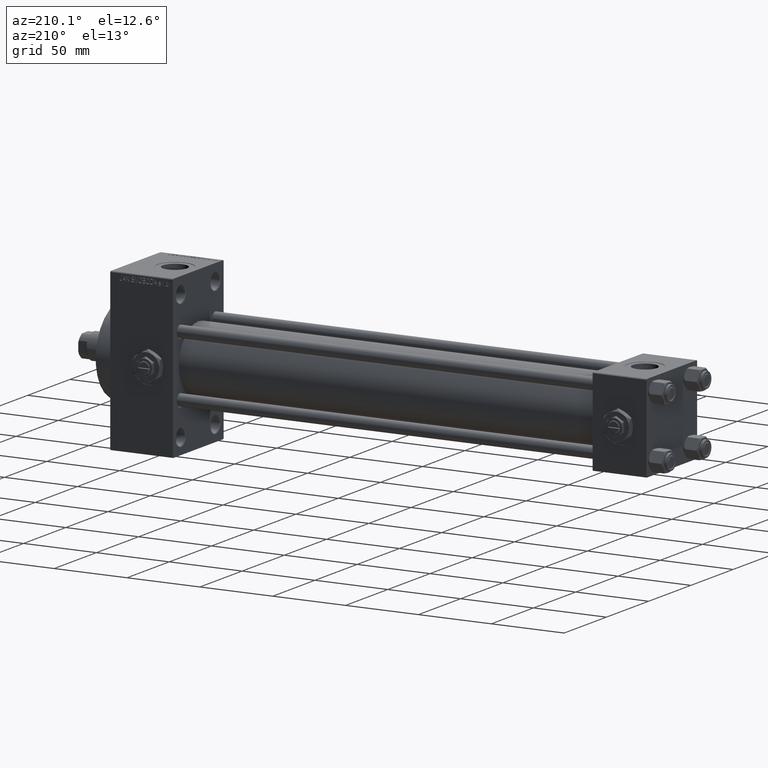
[diagram: clean part render]
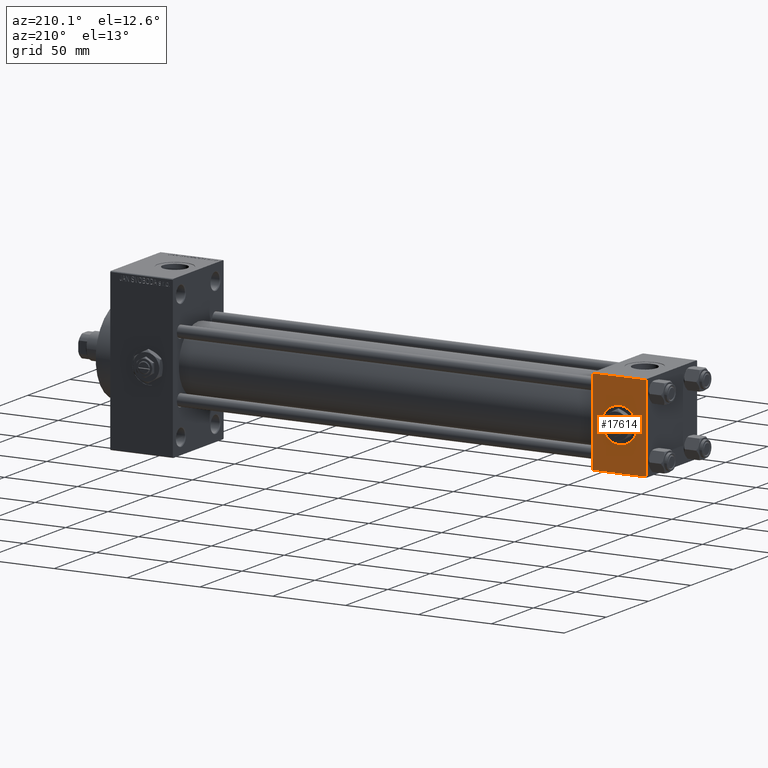
[diagram: same view with one face highlighted and labeled with its STEP entity id]
A machine part, auxiliary view. The second image highlights one B-rep face of the part: STEP entity #17614.
In plain terms, the highlighted planar face has unit normal (0, 1, 0).
Its self-contained STEP definition (entity closure, byte-faithful):
#361 = VERTEX_POINT ( 'NONE', #15430 ) ;
#693 = CIRCLE ( 'NONE', #38911, 12.00000000000000178 ) ;
#944 = FACE_BOUND ( 'NONE', #13775, .T. ) ;
#1208 = CARTESIAN_POINT ( 'NONE',  ( 0.000000000000000000, 29.99999999999999289, 29.50000000000000000 ) ) ;
#4821 = CARTESIAN_POINT ( 'NONE',  ( 37.00000000000000000, 29.99999999999999289, -29.50000000000000000 ) ) ;
#5019 = CARTESIAN_POINT ( 'NONE',  ( 18.50000000000000000, 29.99999999999999289, 0.000000000000000000 ) ) ;
#5184 = DIRECTION ( 'NONE',  ( -0.000000000000000000, 1.000000000000000000, 0.000000000000000000 ) ) ;
#5655 = ORIENTED_EDGE ( 'NONE', *, *, #47952, .F. ) ;
#6331 = DIRECTION ( 'NONE',  ( 0.000000000000000000, 0.000000000000000000, 1.000000000000000000 ) ) ;
#8530 = EDGE_CURVE ( 'NONE', #40030, #361, #47798, .T. ) ;
#10793 = DIRECTION ( 'NONE',  ( 0.000000000000000000, 0.000000000000000000, -1.000000000000000000 ) ) ;
#12418 = DIRECTION ( 'NONE',  ( 0.000000000000000000, -0.000000000000000000, 1.000000000000000000 ) ) ;
#13253 = DIRECTION ( 'NONE',  ( 0.000000000000000000, 1.000000000000000000, 0.000000000000000000 ) ) ;
#13775 = EDGE_LOOP ( 'NONE', ( #5655, #31707 ) ) ;
#15374 = EDGE_LOOP ( 'NONE', ( #27548, #21043, #46131, #39763 ) ) ;
#15430 = CARTESIAN_POINT ( 'NONE',  ( 0.000000000000000000, 29.99999999999999289, -29.50000000000000000 ) ) ;
#15469 = LINE ( 'NONE', #18976, #41784 ) ;
#16464 = CARTESIAN_POINT ( 'NONE',  ( 18.50000000000000000, 29.99999999999999289, -12.00000000000000178 ) ) ;
#17614 = ADVANCED_FACE ( 'NONE', ( #944, #39083 ), #46577, .T. ) ;
#18976 = CARTESIAN_POINT ( 'NONE',  ( 37.00000000000000000, 29.99999999999999289, 29.50000000000000000 ) ) ;
#21043 = ORIENTED_EDGE ( 'NONE', *, *, #8530, .T. ) ;
#21496 = LINE ( 'NONE', #29485, #23382 ) ;
#21929 = CIRCLE ( 'NONE', #32294, 12.00000000000000178 ) ;
#22454 = EDGE_CURVE ( 'NONE', #45657, #40030, #21496, .T. ) ;
#23140 = LINE ( 'NONE', #23386, #49126 ) ;
#23382 = VECTOR ( 'NONE', #10793, 1000.000000000000000 ) ;
#23386 = CARTESIAN_POINT ( 'NONE',  ( 0.000000000000000000, 29.99999999999999289, 30.00000000000000000 ) ) ;
#23876 = DIRECTION ( 'NONE',  ( 0.000000000000000000, 0.000000000000000000, -1.000000000000000000 ) ) ;
#24723 = EDGE_CURVE ( 'NONE', #42011, #45657, #15469, .T. ) ;
#25268 = CARTESIAN_POINT ( 'NONE',  ( 18.50000000000000000, 29.99999999999999289, 0.000000000000000000 ) ) ;
#27476 = EDGE_CURVE ( 'NONE', #31836, #31259, #21929, .T. ) ;
#27548 = ORIENTED_EDGE ( 'NONE', *, *, #22454, .T. ) ;
#29422 = VECTOR ( 'NONE', #47555, 1000.000000000000000 ) ;
#29485 = CARTESIAN_POINT ( 'NONE',  ( 37.00000000000000000, 29.99999999999999289, 30.00000000000000000 ) ) ;
#31259 = VERTEX_POINT ( 'NONE', #38058 ) ;
#31350 = CARTESIAN_POINT ( 'NONE',  ( 37.00000000000000000, 29.99999999999999289, 30.00000000000000000 ) ) ;
#31707 = ORIENTED_EDGE ( 'NONE', *, *, #27476, .F. ) ;
#31836 = VERTEX_POINT ( 'NONE', #16464 ) ;
#32294 = AXIS2_PLACEMENT_3D ( 'NONE', #25268, #41232, #6331 ) ;
#32891 = AXIS2_PLACEMENT_3D ( 'NONE', #31350, #5184, #12418 ) ;
#38058 = CARTESIAN_POINT ( 'NONE',  ( 18.50000000000000000, 29.99999999999999289, 12.00000000000000178 ) ) ;
#38911 = AXIS2_PLACEMENT_3D ( 'NONE', #5019, #13253, #47145 ) ;
#39083 = FACE_OUTER_BOUND ( 'NONE', #15374, .T. ) ;
#39763 = ORIENTED_EDGE ( 'NONE', *, *, #24723, .T. ) ;
#40030 = VERTEX_POINT ( 'NONE', #4821 ) ;
#40313 = CARTESIAN_POINT ( 'NONE',  ( 37.00000000000000000, 29.99999999999999289, -29.50000000000000000 ) ) ;
#41232 = DIRECTION ( 'NONE',  ( 0.000000000000000000, 1.000000000000000000, 0.000000000000000000 ) ) ;
#41784 = VECTOR ( 'NONE', #45904, 1000.000000000000000 ) ;
#42011 = VERTEX_POINT ( 'NONE', #1208 ) ;
#45292 = CARTESIAN_POINT ( 'NONE',  ( 37.00000000000000000, 29.99999999999999289, 29.50000000000000000 ) ) ;
#45450 = EDGE_CURVE ( 'NONE', #42011, #361, #23140, .T. ) ;
#45657 = VERTEX_POINT ( 'NONE', #45292 ) ;
#45904 = DIRECTION ( 'NONE',  ( 1.000000000000000000, 0.000000000000000000, 0.000000000000000000 ) ) ;
#46131 = ORIENTED_EDGE ( 'NONE', *, *, #45450, .F. ) ;
#46577 = PLANE ( 'NONE',  #32891 ) ;
#47145 = DIRECTION ( 'NONE',  ( 0.000000000000000000, 0.000000000000000000, 1.000000000000000000 ) ) ;
#47555 = DIRECTION ( 'NONE',  ( -1.000000000000000000, 0.000000000000000000, 0.000000000000000000 ) ) ;
#47798 = LINE ( 'NONE', #40313, #29422 ) ;
#47952 = EDGE_CURVE ( 'NONE', #31259, #31836, #693, .T. ) ;
#49126 = VECTOR ( 'NONE', #23876, 1000.000000000000000 ) ;